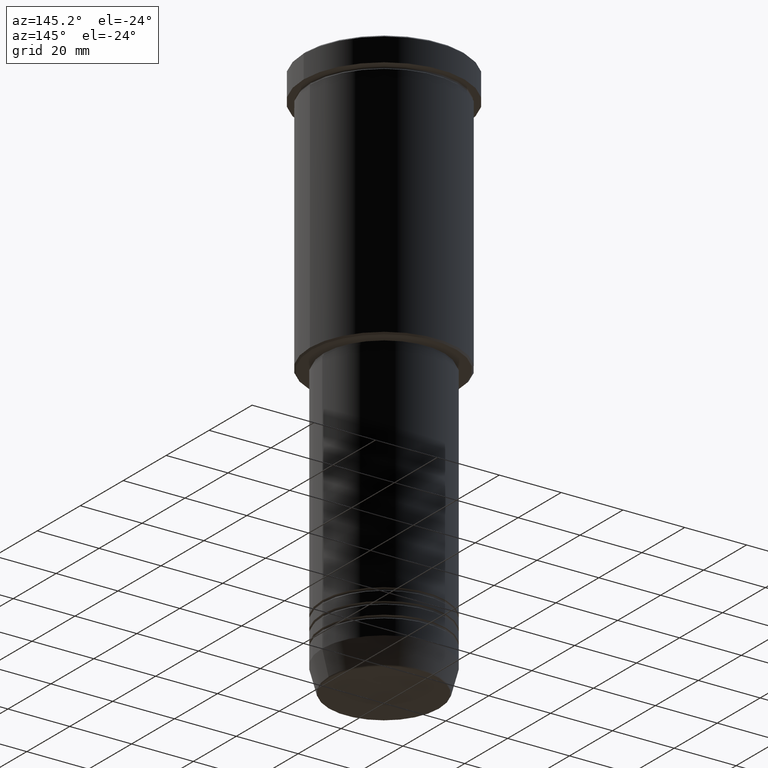
[diagram: clean part render]
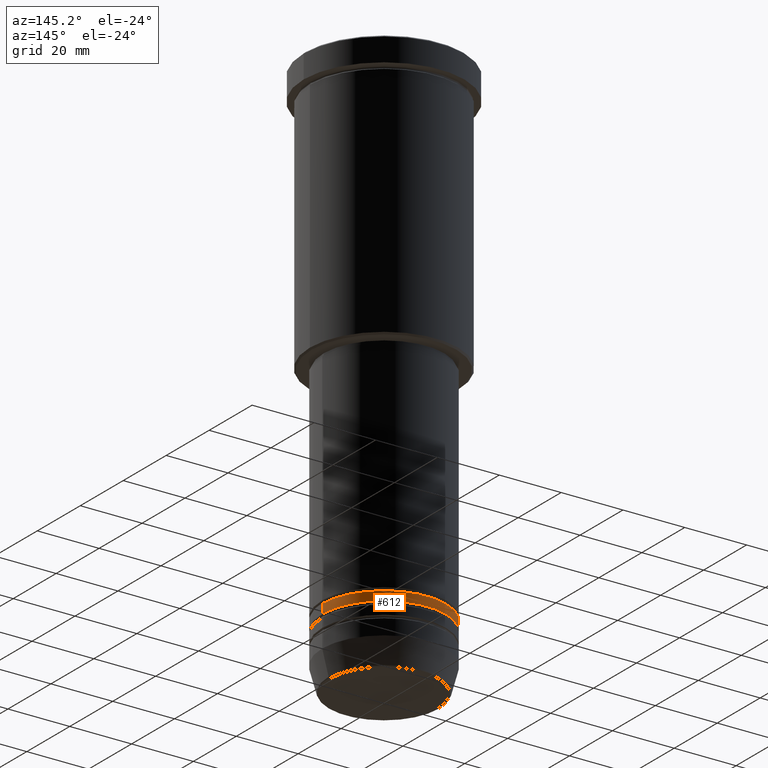
[diagram: same view with one face highlighted and labeled with its STEP entity id]
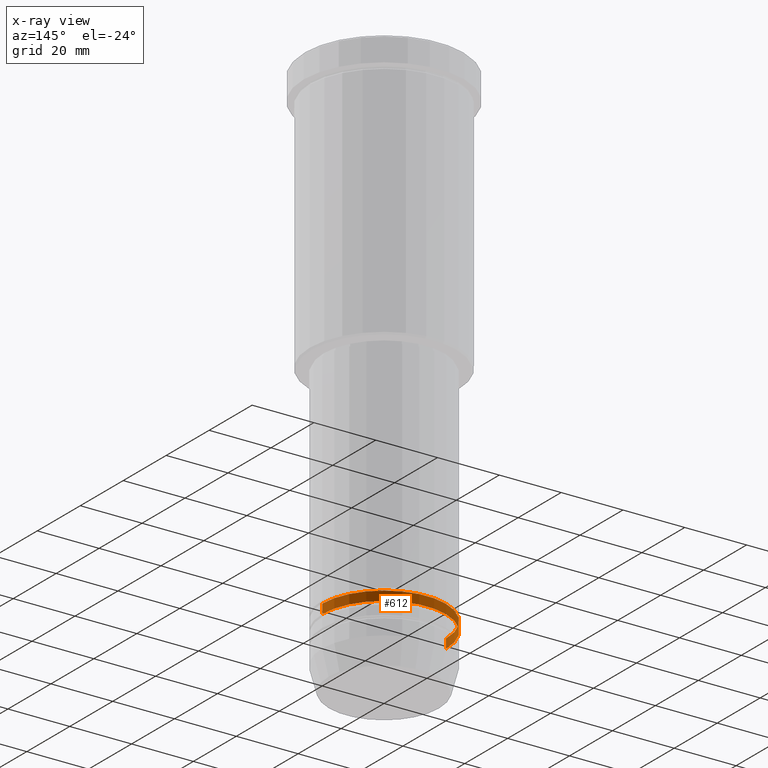
[diagram: x-ray of the same camera — body ghosted, the highlighted face saturated]
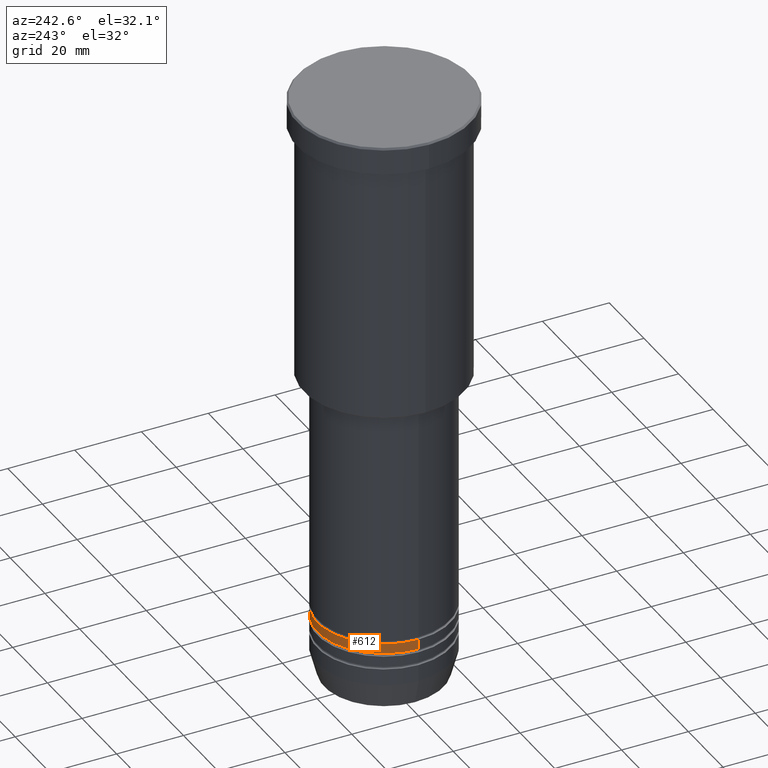
[diagram: same view with one face highlighted and labeled with its STEP entity id]
A machine part, auxiliary view. The second image highlights one B-rep face of the part: STEP entity #612.
The next image is the same camera in x-ray: the body ghosted, the highlighted face saturated — about 2% of this face is hidden behind the body in this view.
A second angle (auxiliary view) of the same face is appended — the face is thin or edge-on in the first view.
In plain terms, the highlighted cylindrical surface (partial cylindrical patch) has radius 20 mm, axis along (-0, -0, 1).
Its self-contained STEP definition (entity closure, byte-faithful):
#50 = ORIENTED_EDGE ( 'NONE', *, *, #118, .T. ) ;
#74 = DIRECTION ( 'NONE',  ( 1.000000000000000000, 0.000000000000000000, 0.000000000000000000 ) ) ;
#118 = EDGE_CURVE ( 'NONE', #191, #200, #1033, .T. ) ;
#154 = EDGE_LOOP ( 'NONE', ( #50, #633, #560, #803 ) ) ;
#165 = VECTOR ( 'NONE', #405, 1000.000000000000000 ) ;
#190 = EDGE_CURVE ( 'NONE', #191, #922, #569, .T. ) ;
#191 = VERTEX_POINT ( 'NONE', #393 ) ;
#200 = VERTEX_POINT ( 'NONE', #731 ) ;
#329 = EDGE_CURVE ( 'NONE', #200, #1144, #949, .T. ) ;
#357 = AXIS2_PLACEMENT_3D ( 'NONE', #1044, #962, #792 ) ;
#363 = CARTESIAN_POINT ( 'NONE',  ( 0.000000000000000000, 0.000000000000000000, 0.000000000000000000 ) ) ;
#393 = CARTESIAN_POINT ( 'NONE',  ( 20.00000000000000355, 0.000000000000000000, -162.0000000000000000 ) ) ;
#394 = AXIS2_PLACEMENT_3D ( 'NONE', #363, #1002, #919 ) ;
#398 = CIRCLE ( 'NONE', #621, 20.00000000000000000 ) ;
#405 = DIRECTION ( 'NONE',  ( -0.000000000000000000, -0.000000000000000000, 1.000000000000000000 ) ) ;
#531 = DIRECTION ( 'NONE',  ( -0.000000000000000000, -0.000000000000000000, 1.000000000000000000 ) ) ;
#560 = ORIENTED_EDGE ( 'NONE', *, *, #1160, .F. ) ;
#569 = LINE ( 'NONE', #1034, #817 ) ;
#612 = ADVANCED_FACE ( 'NONE', ( #636 ), #1007, .T. ) ;
#621 = AXIS2_PLACEMENT_3D ( 'NONE', #624, #531, #74 ) ;
#624 = CARTESIAN_POINT ( 'NONE',  ( 0.000000000000000000, 0.000000000000000000, -159.0000000000000000 ) ) ;
#633 = ORIENTED_EDGE ( 'NONE', *, *, #329, .T. ) ;
#636 = FACE_OUTER_BOUND ( 'NONE', #154, .T. ) ;
#699 = CARTESIAN_POINT ( 'NONE',  ( -20.00000000000000000, 2.449293598294706513E-15, -159.0000000000000000 ) ) ;
#731 = CARTESIAN_POINT ( 'NONE',  ( -20.00000000000000355, 2.449293598294706907E-15, -162.0000000000000000 ) ) ;
#740 = DIRECTION ( 'NONE',  ( -0.000000000000000000, -0.000000000000000000, 1.000000000000000000 ) ) ;
#741 = CARTESIAN_POINT ( 'NONE',  ( 20.00000000000000000, 0.000000000000000000, -159.0000000000000000 ) ) ;
#792 = DIRECTION ( 'NONE',  ( 1.000000000000000000, 0.000000000000000000, 0.000000000000000000 ) ) ;
#803 = ORIENTED_EDGE ( 'NONE', *, *, #190, .F. ) ;
#817 = VECTOR ( 'NONE', #740, 1000.000000000000000 ) ;
#863 = CARTESIAN_POINT ( 'NONE',  ( -20.00000000000000355, 2.449293598294706907E-15, 0.000000000000000000 ) ) ;
#919 = DIRECTION ( 'NONE',  ( 1.000000000000000000, 0.000000000000000000, 0.000000000000000000 ) ) ;
#922 = VERTEX_POINT ( 'NONE', #741 ) ;
#949 = LINE ( 'NONE', #863, #165 ) ;
#962 = DIRECTION ( 'NONE',  ( -0.000000000000000000, -0.000000000000000000, 1.000000000000000000 ) ) ;
#1002 = DIRECTION ( 'NONE',  ( -0.000000000000000000, -0.000000000000000000, 1.000000000000000000 ) ) ;
#1007 = CYLINDRICAL_SURFACE ( 'NONE', #394, 20.00000000000000355 ) ;
#1033 = CIRCLE ( 'NONE', #357, 20.00000000000000355 ) ;
#1034 = CARTESIAN_POINT ( 'NONE',  ( 20.00000000000000355, 0.000000000000000000, 0.000000000000000000 ) ) ;
#1044 = CARTESIAN_POINT ( 'NONE',  ( 0.000000000000000000, 0.000000000000000000, -162.0000000000000000 ) ) ;
#1144 = VERTEX_POINT ( 'NONE', #699 ) ;
#1160 = EDGE_CURVE ( 'NONE', #922, #1144, #398, .T. ) ;